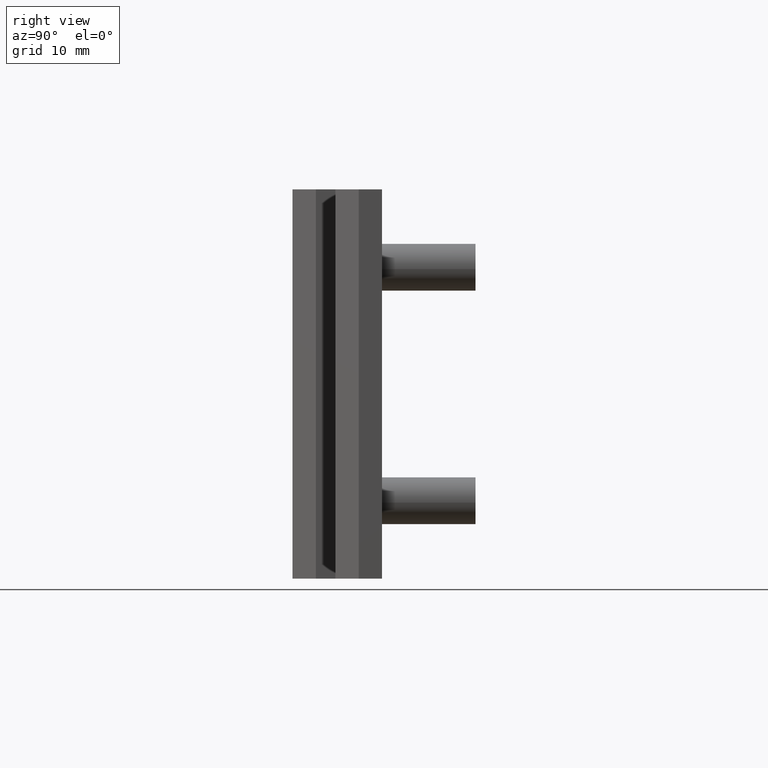
[diagram: clean part render]
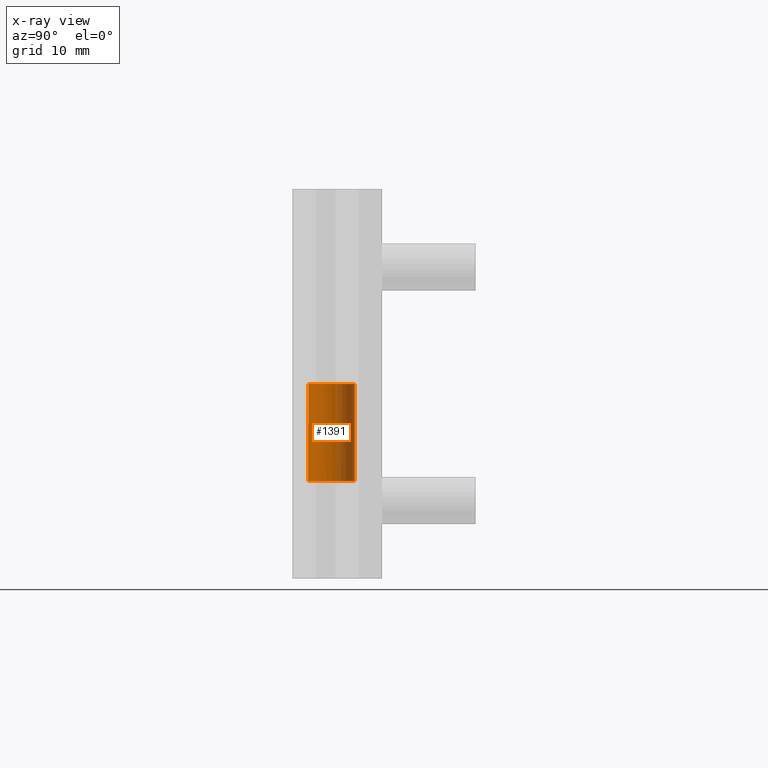
[diagram: x-ray — body ghosted, one internal face saturated and labeled with its STEP entity id]
A machine part, right view, then the same camera in x-ray: the body is ghosted and one INTERNAL B-rep face — a face not visible from any outside direction — is saturated and labeled: STEP entity #1391.
In plain terms, the highlighted face is a freeform B-spline surface patch.
Its self-contained STEP definition (entity closure, byte-faithful):
#1226=CARTESIAN_POINT('',(-0.372384006431586,-2.976798641452586,25.0));
#1227=VERTEX_POINT('',#1226);
#1241=CARTESIAN_POINT('',(-0.372384006448734,-2.976798641450441,12.500000000047599));
#1242=VERTEX_POINT('',#1241);
#1243=CARTESIAN_POINT('',(-0.372384006431586,-2.976798641452586,25.0));
#1244=CARTESIAN_POINT('',(-0.372384006448734,-2.976798641450441,12.500000000047599));
#1245=QUASI_UNIFORM_CURVE('',1,(#1243,#1244),.UNSPECIFIED.,.F.,.U.);
#1246=EDGE_CURVE('',#1227,#1242,#1245,.T.);
#1263=CARTESIAN_POINT('',(0.026179606800291,2.999885769189850,12.500000000047111));
#1264=VERTEX_POINT('',#1263);
#1280=CARTESIAN_POINT('',(0.026179606779164,2.999885769190035,25.0));
#1281=VERTEX_POINT('',#1280);
#1282=CARTESIAN_POINT('',(0.026179606779164,2.999885769190035,25.0));
#1283=CARTESIAN_POINT('',(0.026179606800291,2.999885769189850,12.500000000047111));
#1284=QUASI_UNIFORM_CURVE('',1,(#1282,#1283),.UNSPECIFIED.,.F.,.U.);
#1285=EDGE_CURVE('',#1281,#1264,#1284,.T.);
#1305=CARTESIAN_POINT('',(0.026179606495122,2.999885769192513,25.312499999998920));
#1306=CARTESIAN_POINT('',(3.026065375687634,2.973706162697392,25.312499999998916));
#1307=CARTESIAN_POINT('',(2.999885769192513,-0.026179606495122,25.312499999998920));
#1308=CARTESIAN_POINT('',(2.973706162697392,-3.026065375687634,25.312499999998916));
#1309=CARTESIAN_POINT('',(-0.026179606495122,-2.999885769192513,25.312499999998920));
#1310=CARTESIAN_POINT('',(-0.199950476874521,-2.998369293780826,25.312499999998913));
#1311=CARTESIAN_POINT('',(-0.372384006239488,-2.976798641476615,25.312499999998916));
#1312=CARTESIAN_POINT('',(0.026179606495122,2.999885769192513,12.179687500044540));
#1313=CARTESIAN_POINT('',(3.026065375687634,2.973706162697392,12.179687500044537));
#1314=CARTESIAN_POINT('',(2.999885769192513,-0.026179606495122,12.179687500044540));
#1315=CARTESIAN_POINT('',(2.973706162697392,-3.026065375687634,12.179687500044537));
#1316=CARTESIAN_POINT('',(-0.026179606495122,-2.999885769192513,12.179687500044540));
#1317=CARTESIAN_POINT('',(-0.199950476874521,-2.998369293780826,12.179687500044531));
#1318=CARTESIAN_POINT('',(-0.372384006239488,-2.976798641476615,12.179687500044539));
#1326=(BOUNDED_SURFACE()B_SPLINE_SURFACE(2,1,((#1305,#1312),(#1306,#1313),(#1307,#1314),(#1308,#1315),(#1309,#1316),(#1310,#1317),(#1311,#1318)),.UNSPECIFIED.,.F.,.F.,.U.)B_SPLINE_SURFACE_WITH_KNOTS((3,2,2,3),(2,2),(0.0,4.970562748477139,9.941125496954278,10.338770516832451),(0.0,13.132812499954390),.UNSPECIFIED.)GEOMETRIC_REPRESENTATION_ITEM()RATIONAL_B_SPLINE_SURFACE(((1.0,1.0),(0.707106781186548,0.707106781186548),(1.0,1.0),(0.707106781186548,0.707106781186548),(1.0,1.0),(0.976568542494924,0.976568542494924),(0.956886118190660,0.956886118190660)))REPRESENTATION_ITEM('')SURFACE());
#1327=CARTESIAN_POINT('',(3.0,0.0,25.0));
#1328=VERTEX_POINT('',#1327);
#1329=CARTESIAN_POINT('',(-0.372384006431586,-2.976798641452586,24.999999999999996));
#1330=CARTESIAN_POINT('',(-0.186914782794829,-3.000000000000001,25.000000000000004));
#1331=CARTESIAN_POINT('',(0.0,-3.0,25.0));
#1332=CARTESIAN_POINT('',(3.0,-3.0,25.0));
#1333=CARTESIAN_POINT('',(3.0,0.0,25.0));
#1341=(BOUNDED_CURVE()B_SPLINE_CURVE(2,(#1329,#1330,#1331,#1332,#1333),.UNSPECIFIED.,.F.,.U.)B_SPLINE_CURVE_WITH_KNOTS((3,2,3),(0.228526071007533,0.250000000000000,0.500000000000000),.UNSPECIFIED.)CURVE()GEOMETRIC_REPRESENTATION_ITEM()RATIONAL_B_SPLINE_CURVE((0.954005430232479,0.974841727267299,1.0,0.707106781186548,1.0))REPRESENTATION_ITEM(''));
#1342=EDGE_CURVE('',#1227,#1328,#1341,.T.);
#1343=ORIENTED_EDGE('',*,*,#1342,.T.);
#1344=CARTESIAN_POINT('',(3.0,0.0,25.0));
#1345=CARTESIAN_POINT('',(3.000000000000001,2.973933631221728,25.000000000000007));
#1346=CARTESIAN_POINT('',(0.026179606779164,2.999885769190035,25.000000000000004));
#1354=(BOUNDED_CURVE()B_SPLINE_CURVE(2,(#1344,#1345,#1346),.UNSPECIFIED.,.F.,.U.)B_SPLINE_CURVE_WITH_KNOTS((3,3),(0.500000000000000,0.748460105631656),.UNSPECIFIED.)CURVE()GEOMETRIC_REPRESENTATION_ITEM()RATIONAL_B_SPLINE_CURVE((1.0,0.708910879659255,0.996414028023209))REPRESENTATION_ITEM(''));
#1355=EDGE_CURVE('',#1328,#1281,#1354,.T.);
#1356=ORIENTED_EDGE('',*,*,#1355,.T.);
#1357=ORIENTED_EDGE('',*,*,#1285,.T.);
#1358=CARTESIAN_POINT('',(3.0,0.0,12.500000000043419));
#1359=VERTEX_POINT('',#1358);
#1360=CARTESIAN_POINT('',(0.026179606800291,2.999885769189851,12.500000000047105));
#1361=CARTESIAN_POINT('',(3.000000000000000,2.973933631179854,12.500000000043423));
#1362=CARTESIAN_POINT('',(3.0,0.0,12.500000000043419));
#1370=(BOUNDED_CURVE()B_SPLINE_CURVE(2,(#1360,#1361,#1362),.UNSPECIFIED.,.F.,.U.)B_SPLINE_CURVE_WITH_KNOTS((3,3),(0.751539894370824,1.0),.UNSPECIFIED.)CURVE()GEOMETRIC_REPRESENTATION_ITEM()RATIONAL_B_SPLINE_CURVE((0.996414028017469,0.708910879662161,1.0))REPRESENTATION_ITEM(''));
#1371=EDGE_CURVE('',#1264,#1359,#1370,.T.);
#1372=ORIENTED_EDGE('',*,*,#1371,.T.);
#1373=CARTESIAN_POINT('',(3.0,0.0,12.500000000043419));
#1374=CARTESIAN_POINT('',(3.0,-3.0,12.500000000043421));
#1375=CARTESIAN_POINT('',(0.0,-3.0,12.500000000047139));
#1376=CARTESIAN_POINT('',(-0.186914782812178,-3.000000000000000,12.500000000047367));
#1377=CARTESIAN_POINT('',(-0.372384006448734,-2.976798641450441,12.500000000047601));
#1385=(BOUNDED_CURVE()B_SPLINE_CURVE(2,(#1373,#1374,#1375,#1376,#1377),.UNSPECIFIED.,.F.,.U.)B_SPLINE_CURVE_WITH_KNOTS((3,2,3),(0.0,0.250000000000000,0.271473928994410),.UNSPECIFIED.)CURVE()GEOMETRIC_REPRESENTATION_ITEM()RATIONAL_B_SPLINE_CURVE((1.0,0.707106781186548,1.0,0.974841727265023,0.954005430228709))REPRESENTATION_ITEM(''));
#1386=EDGE_CURVE('',#1359,#1242,#1385,.T.);
#1387=ORIENTED_EDGE('',*,*,#1386,.T.);
#1388=ORIENTED_EDGE('',*,*,#1246,.F.);
#1389=EDGE_LOOP('',(#1343,#1356,#1357,#1372,#1387,#1388));
#1390=FACE_OUTER_BOUND('',#1389,.T.);
#1391=ADVANCED_FACE('',(#1390),#1326,.F.);